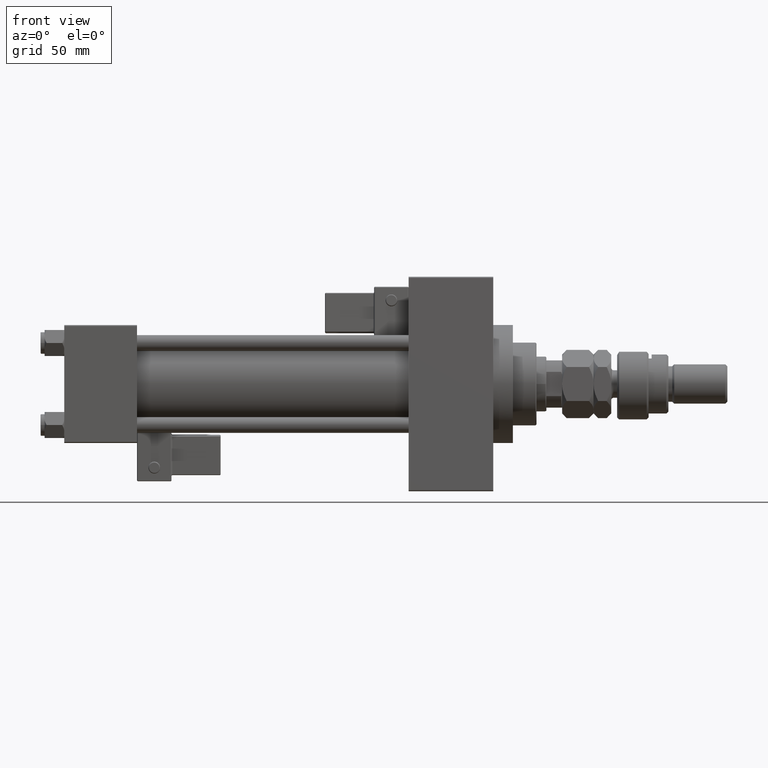
[diagram: clean part render]
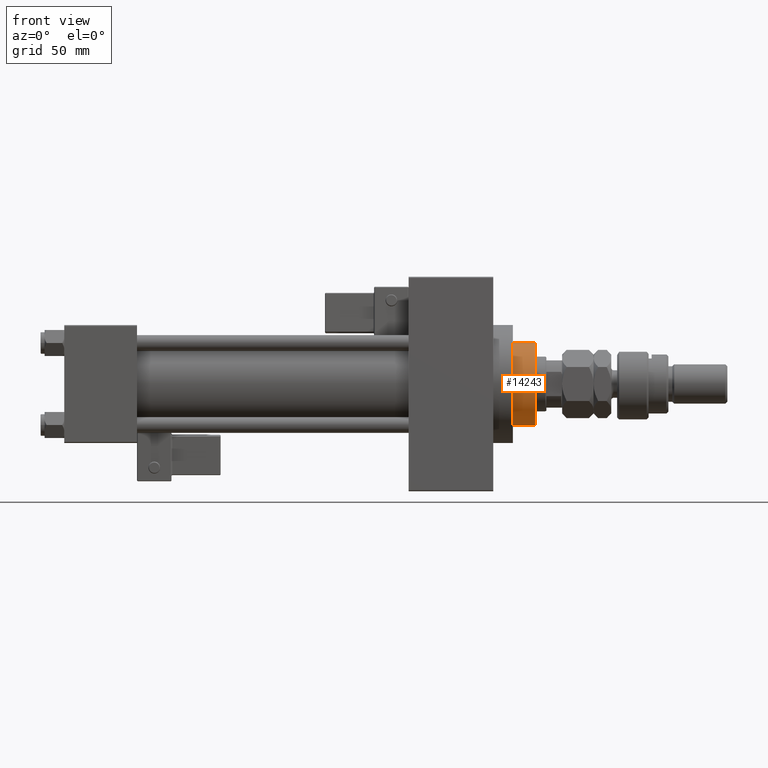
[diagram: same view with one face highlighted and labeled with its STEP entity id]
A machine part, front view. The second image highlights one B-rep face of the part: STEP entity #14243.
In plain terms, the highlighted cylindrical surface (partial cylindrical patch) has radius 21 mm, axis along (-1, 0, 0).
Its self-contained STEP definition (entity closure, byte-faithful):
#2627 = VERTEX_POINT ( 'NONE', #4662 ) ;
#3446 = VERTEX_POINT ( 'NONE', #38795 ) ;
#3904 = DIRECTION ( 'NONE',  ( -0.000000000000000000, -0.000000000000000000, -1.000000000000000000 ) ) ;
#4662 = CARTESIAN_POINT ( 'NONE',  ( -21.00000000000000000, 0.000000000000000000, 43.25999999999999801 ) ) ;
#6918 = ORIENTED_EDGE ( 'NONE', *, *, #22481, .T. ) ;
#11028 = DIRECTION ( 'NONE',  ( 0.000000000000000000, 0.000000000000000000, 1.000000000000000000 ) ) ;
#11928 = LINE ( 'NONE', #32656, #22304 ) ;
#12997 = DIRECTION ( 'NONE',  ( -0.000000000000000000, -0.000000000000000000, -1.000000000000000000 ) ) ;
#14243 = ADVANCED_FACE ( 'NONE', ( #42555 ), #54453, .T. ) ;
#14866 = CARTESIAN_POINT ( 'NONE',  ( 0.000000000000000000, 0.000000000000000000, 43.25999999999999801 ) ) ;
#15084 = ORIENTED_EDGE ( 'NONE', *, *, #29848, .T. ) ;
#15201 = EDGE_CURVE ( 'NONE', #3446, #2627, #32849, .T. ) ;
#15886 = AXIS2_PLACEMENT_3D ( 'NONE', #42009, #12997, #29840 ) ;
#15966 = ORIENTED_EDGE ( 'NONE', *, *, #15201, .F. ) ;
#16992 = CIRCLE ( 'NONE', #40757, 21.00000000000000000 ) ;
#18038 = ORIENTED_EDGE ( 'NONE', *, *, #23074, .T. ) ;
#19011 = CIRCLE ( 'NONE', #43702, 21.00000000000000000 ) ;
#19603 = CARTESIAN_POINT ( 'NONE',  ( 0.000000000000000000, 0.000000000000000000, 43.25999999999999801 ) ) ;
#20888 = DIRECTION ( 'NONE',  ( 0.000000000000000000, 0.000000000000000000, 1.000000000000000000 ) ) ;
#21718 = AXIS2_PLACEMENT_3D ( 'NONE', #41328, #20888, #29976 ) ;
#22304 = VECTOR ( 'NONE', #3904, 1000.000000000000000 ) ;
#22481 = EDGE_CURVE ( 'NONE', #3446, #25146, #16992, .T. ) ;
#22571 = ORIENTED_EDGE ( 'NONE', *, *, #30215, .T. ) ;
#23074 = EDGE_CURVE ( 'NONE', #25146, #45773, #11928, .T. ) ;
#24057 = VERTEX_POINT ( 'NONE', #40131 ) ;
#24641 = CARTESIAN_POINT ( 'NONE',  ( 0.000000000000000000, 0.000000000000000000, 54.75999999999999091 ) ) ;
#25146 = VERTEX_POINT ( 'NONE', #53679 ) ;
#26348 = CARTESIAN_POINT ( 'NONE',  ( 21.00000000000000000, 2.571758278209441661E-15, 43.25999999999999801 ) ) ;
#27287 = DIRECTION ( 'NONE',  ( 1.000000000000000000, 0.000000000000000000, 0.000000000000000000 ) ) ;
#29225 = EDGE_LOOP ( 'NONE', ( #6918, #18038, #15084, #22571, #45264, #15966 ) ) ;
#29840 = DIRECTION ( 'NONE',  ( -1.000000000000000000, 0.000000000000000000, 0.000000000000000000 ) ) ;
#29848 = EDGE_CURVE ( 'NONE', #45773, #24057, #44618, .T. ) ;
#29976 = DIRECTION ( 'NONE',  ( 1.000000000000000000, 0.000000000000000000, 0.000000000000000000 ) ) ;
#30215 = EDGE_CURVE ( 'NONE', #24057, #47441, #54258, .T. ) ;
#32656 = CARTESIAN_POINT ( 'NONE',  ( 21.00000000000000000, 2.571758278209441661E-15, 55.26000000000000512 ) ) ;
#32684 = VECTOR ( 'NONE', #53301, 1000.000000000000000 ) ;
#32849 = LINE ( 'NONE', #41137, #32684 ) ;
#37626 = DIRECTION ( 'NONE',  ( 1.000000000000000000, 0.000000000000000000, 0.000000000000000000 ) ) ;
#38795 = CARTESIAN_POINT ( 'NONE',  ( -21.00000000000000000, 0.000000000000000000, 54.75999999999999091 ) ) ;
#40131 = CARTESIAN_POINT ( 'NONE',  ( 20.96385542168674831, 1.231570484631382412, 43.25999999999999801 ) ) ;
#40757 = AXIS2_PLACEMENT_3D ( 'NONE', #24641, #53663, #37626 ) ;
#41137 = CARTESIAN_POINT ( 'NONE',  ( -21.00000000000000000, 0.000000000000000000, 55.26000000000000512 ) ) ;
#41328 = CARTESIAN_POINT ( 'NONE',  ( 0.000000000000000000, 0.000000000000000000, 43.25999999999999801 ) ) ;
#42009 = CARTESIAN_POINT ( 'NONE',  ( 0.000000000000000000, 0.000000000000000000, 55.26000000000000512 ) ) ;
#42555 = FACE_OUTER_BOUND ( 'NONE', #29225, .T. ) ;
#43258 = EDGE_CURVE ( 'NONE', #47441, #2627, #19011, .T. ) ;
#43702 = AXIS2_PLACEMENT_3D ( 'NONE', #14866, #48840, #27287 ) ;
#44110 = CARTESIAN_POINT ( 'NONE',  ( -20.96385542168674831, 1.231570484631382412, 43.25999999999999801 ) ) ;
#44618 = CIRCLE ( 'NONE', #21718, 21.00000000000000000 ) ;
#45264 = ORIENTED_EDGE ( 'NONE', *, *, #43258, .T. ) ;
#45773 = VERTEX_POINT ( 'NONE', #26348 ) ;
#47441 = VERTEX_POINT ( 'NONE', #44110 ) ;
#48840 = DIRECTION ( 'NONE',  ( 0.000000000000000000, 0.000000000000000000, 1.000000000000000000 ) ) ;
#49985 = DIRECTION ( 'NONE',  ( 1.000000000000000000, 0.000000000000000000, 0.000000000000000000 ) ) ;
#50737 = AXIS2_PLACEMENT_3D ( 'NONE', #19603, #11028, #49985 ) ;
#53301 = DIRECTION ( 'NONE',  ( -0.000000000000000000, -0.000000000000000000, -1.000000000000000000 ) ) ;
#53663 = DIRECTION ( 'NONE',  ( 0.000000000000000000, 0.000000000000000000, -1.000000000000000000 ) ) ;
#53679 = CARTESIAN_POINT ( 'NONE',  ( 21.00000000000000000, 2.571758278209441661E-15, 54.75999999999999091 ) ) ;
#54258 = CIRCLE ( 'NONE', #50737, 21.00000000000000000 ) ;
#54453 = CYLINDRICAL_SURFACE ( 'NONE', #15886, 21.00000000000000000 ) ;